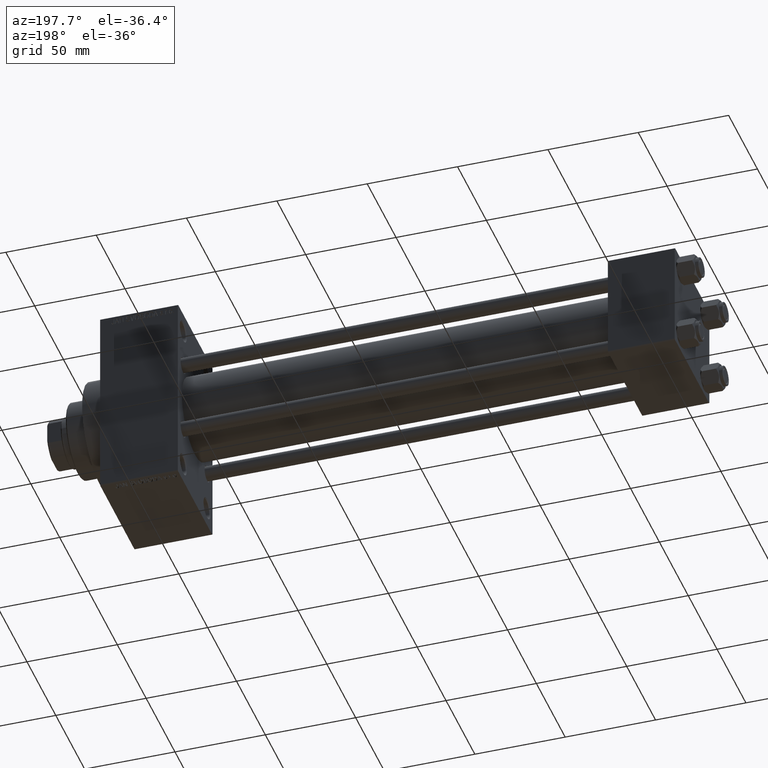
[diagram: clean part render]
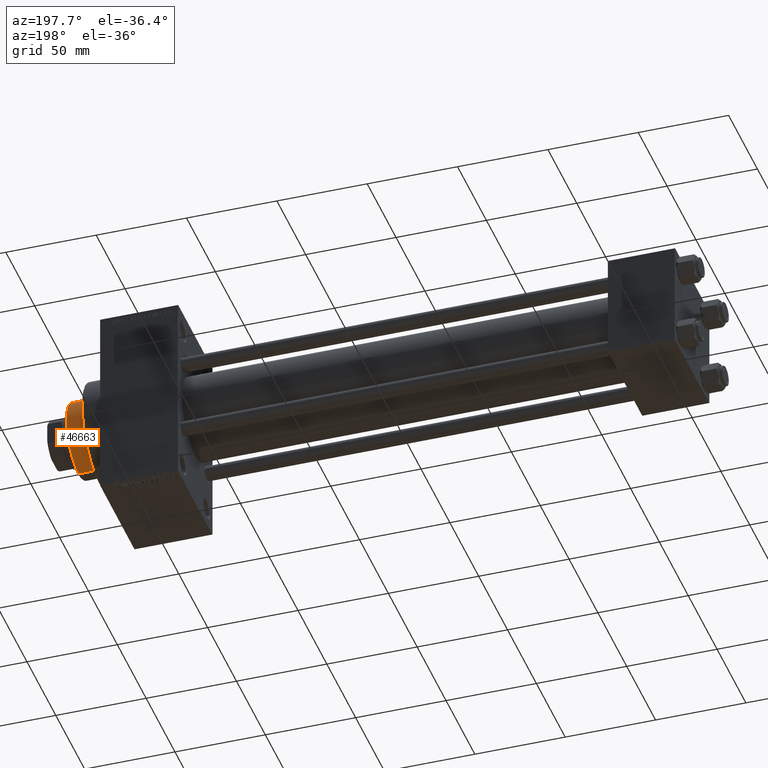
[diagram: same view with one face highlighted and labeled with its STEP entity id]
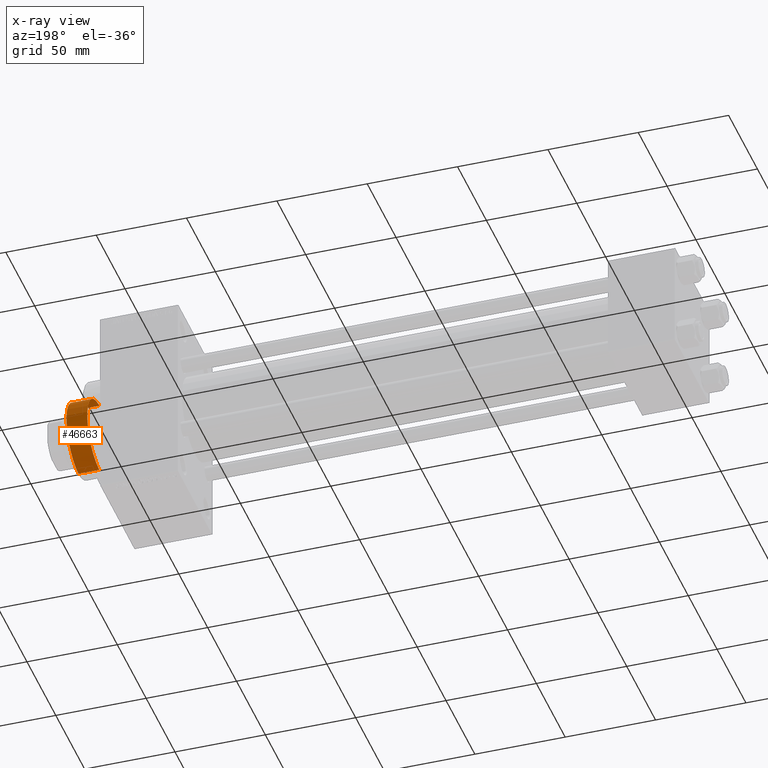
[diagram: x-ray of the same camera — body ghosted, the highlighted face saturated]
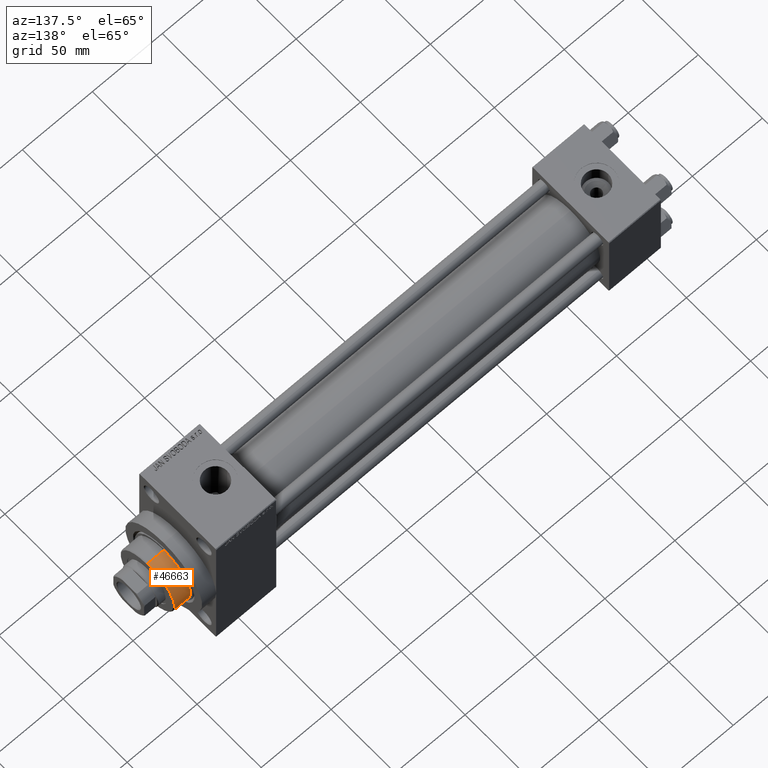
[diagram: same view with one face highlighted and labeled with its STEP entity id]
A machine part, auxiliary view. The second image highlights one B-rep face of the part: STEP entity #46663.
The next image is the same camera in x-ray: the body ghosted, the highlighted face saturated — about 0% of this face is hidden behind the body in this view.
A second angle (auxiliary view) of the same face is appended — the face is thin or edge-on in the first view.
In plain terms, the highlighted cylindrical surface (partial cylindrical patch) has radius 21 mm, axis along (-1, 0, 0).
Its self-contained STEP definition (entity closure, byte-faithful):
#102 = ORIENTED_EDGE ( 'NONE', *, *, #45745, .T. ) ;
#470 = CARTESIAN_POINT ( 'NONE',  ( -20.96385542168674476, -1.231570484631382856, 43.25999999999999801 ) ) ;
#1666 = CARTESIAN_POINT ( 'NONE',  ( 21.00000000000000000, 2.571758278209441661E-15, 43.25999999999999801 ) ) ;
#2391 = EDGE_CURVE ( 'NONE', #33345, #39160, #26683, .T. ) ;
#5195 = CARTESIAN_POINT ( 'NONE',  ( 21.00000000000000000, 2.571758278209441661E-15, 54.75999999999999091 ) ) ;
#5707 = CARTESIAN_POINT ( 'NONE',  ( 0.000000000000000000, 0.000000000000000000, 55.26000000000000512 ) ) ;
#6129 = DIRECTION ( 'NONE',  ( 0.000000000000000000, 0.000000000000000000, 1.000000000000000000 ) ) ;
#7960 = ORIENTED_EDGE ( 'NONE', *, *, #2391, .T. ) ;
#8525 = CARTESIAN_POINT ( 'NONE',  ( 0.000000000000000000, 0.000000000000000000, 43.25999999999999801 ) ) ;
#9215 = AXIS2_PLACEMENT_3D ( 'NONE', #30197, #26356, #12147 ) ;
#10249 = CYLINDRICAL_SURFACE ( 'NONE', #26045, 21.00000000000000000 ) ;
#11423 = VERTEX_POINT ( 'NONE', #34317 ) ;
#11918 = CIRCLE ( 'NONE', #38811, 21.00000000000000000 ) ;
#12147 = DIRECTION ( 'NONE',  ( 1.000000000000000000, 0.000000000000000000, 0.000000000000000000 ) ) ;
#12557 = EDGE_CURVE ( 'NONE', #11423, #34732, #11918, .T. ) ;
#12778 = VECTOR ( 'NONE', #16080, 1000.000000000000000 ) ;
#12798 = ORIENTED_EDGE ( 'NONE', *, *, #12557, .T. ) ;
#13864 = DIRECTION ( 'NONE',  ( -1.000000000000000000, 0.000000000000000000, 0.000000000000000000 ) ) ;
#14094 = DIRECTION ( 'NONE',  ( -0.000000000000000000, -0.000000000000000000, -1.000000000000000000 ) ) ;
#16080 = DIRECTION ( 'NONE',  ( -0.000000000000000000, -0.000000000000000000, -1.000000000000000000 ) ) ;
#17050 = DIRECTION ( 'NONE',  ( 0.000000000000000000, 0.000000000000000000, 1.000000000000000000 ) ) ;
#20217 = CARTESIAN_POINT ( 'NONE',  ( -21.00000000000000000, 0.000000000000000000, 54.75999999999999091 ) ) ;
#20831 = DIRECTION ( 'NONE',  ( -0.000000000000000000, -0.000000000000000000, -1.000000000000000000 ) ) ;
#21255 = AXIS2_PLACEMENT_3D ( 'NONE', #8525, #6129, #36569 ) ;
#21905 = CARTESIAN_POINT ( 'NONE',  ( 0.000000000000000000, 0.000000000000000000, 43.25999999999999801 ) ) ;
#24471 = VECTOR ( 'NONE', #20831, 1000.000000000000000 ) ;
#25525 = DIRECTION ( 'NONE',  ( 1.000000000000000000, 0.000000000000000000, 0.000000000000000000 ) ) ;
#26045 = AXIS2_PLACEMENT_3D ( 'NONE', #5707, #14094, #13864 ) ;
#26194 = EDGE_CURVE ( 'NONE', #29363, #30476, #27676, .T. ) ;
#26356 = DIRECTION ( 'NONE',  ( 0.000000000000000000, 0.000000000000000000, -1.000000000000000000 ) ) ;
#26683 = CIRCLE ( 'NONE', #37417, 21.00000000000000000 ) ;
#27676 = CIRCLE ( 'NONE', #9215, 21.00000000000000000 ) ;
#29363 = VERTEX_POINT ( 'NONE', #5195 ) ;
#30148 = ORIENTED_EDGE ( 'NONE', *, *, #41416, .F. ) ;
#30197 = CARTESIAN_POINT ( 'NONE',  ( 0.000000000000000000, 0.000000000000000000, 54.75999999999999091 ) ) ;
#30476 = VERTEX_POINT ( 'NONE', #20217 ) ;
#31172 = LINE ( 'NONE', #35723, #24471 ) ;
#33345 = VERTEX_POINT ( 'NONE', #37009 ) ;
#34317 = CARTESIAN_POINT ( 'NONE',  ( -21.00000000000000000, 0.000000000000000000, 43.25999999999999801 ) ) ;
#34732 = VERTEX_POINT ( 'NONE', #470 ) ;
#34826 = DIRECTION ( 'NONE',  ( 1.000000000000000000, 0.000000000000000000, 0.000000000000000000 ) ) ;
#35561 = LINE ( 'NONE', #46376, #12778 ) ;
#35723 = CARTESIAN_POINT ( 'NONE',  ( -21.00000000000000000, 0.000000000000000000, 55.26000000000000512 ) ) ;
#36569 = DIRECTION ( 'NONE',  ( 1.000000000000000000, 0.000000000000000000, 0.000000000000000000 ) ) ;
#36571 = DIRECTION ( 'NONE',  ( 0.000000000000000000, 0.000000000000000000, 1.000000000000000000 ) ) ;
#37009 = CARTESIAN_POINT ( 'NONE',  ( 20.96385542168674831, -1.231570484631382412, 43.25999999999999801 ) ) ;
#37417 = AXIS2_PLACEMENT_3D ( 'NONE', #21905, #36571, #25525 ) ;
#38000 = EDGE_LOOP ( 'NONE', ( #30148, #46524, #102, #12798, #43919, #7960 ) ) ;
#38638 = FACE_OUTER_BOUND ( 'NONE', #38000, .T. ) ;
#38811 = AXIS2_PLACEMENT_3D ( 'NONE', #42765, #17050, #34826 ) ;
#39160 = VERTEX_POINT ( 'NONE', #1666 ) ;
#41416 = EDGE_CURVE ( 'NONE', #29363, #39160, #35561, .T. ) ;
#41976 = CIRCLE ( 'NONE', #21255, 21.00000000000000000 ) ;
#42294 = EDGE_CURVE ( 'NONE', #34732, #33345, #41976, .T. ) ;
#42765 = CARTESIAN_POINT ( 'NONE',  ( 0.000000000000000000, 0.000000000000000000, 43.25999999999999801 ) ) ;
#43919 = ORIENTED_EDGE ( 'NONE', *, *, #42294, .T. ) ;
#45745 = EDGE_CURVE ( 'NONE', #30476, #11423, #31172, .T. ) ;
#46376 = CARTESIAN_POINT ( 'NONE',  ( 21.00000000000000000, 2.571758278209441661E-15, 55.26000000000000512 ) ) ;
#46524 = ORIENTED_EDGE ( 'NONE', *, *, #26194, .T. ) ;
#46663 = ADVANCED_FACE ( 'NONE', ( #38638 ), #10249, .T. ) ;